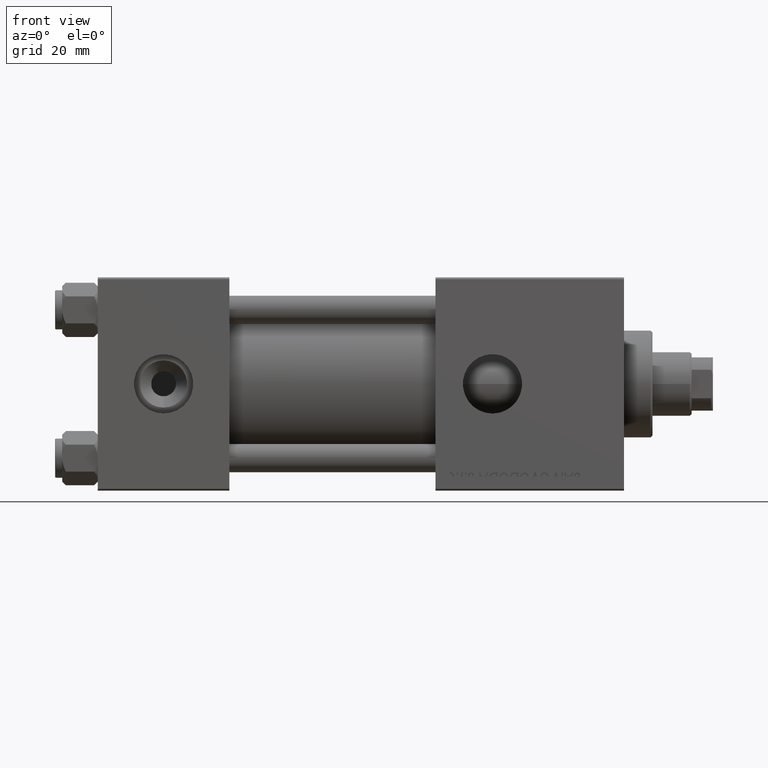
[diagram: clean part render]
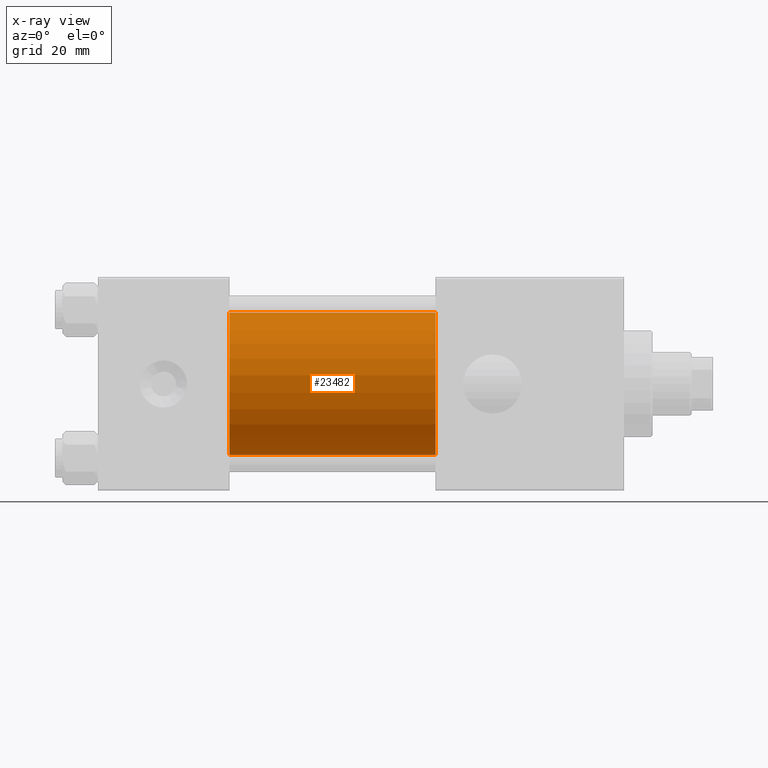
[diagram: x-ray — body ghosted, one internal face saturated and labeled with its STEP entity id]
A machine part, front view, then the same camera in x-ray: the body is ghosted and one INTERNAL B-rep face — a face not visible from any outside direction — is saturated and labeled: STEP entity #23482.
In plain terms, the highlighted cylindrical surface (partial cylindrical patch) has radius 20 mm, axis along (-1, -0, -0).
Its self-contained STEP definition (entity closure, byte-faithful):
#708 = DIRECTION ( 'NONE',  ( -1.000000000000000000, -0.000000000000000000, -0.000000000000000000 ) ) ;
#2819 = DIRECTION ( 'NONE',  ( 1.000000000000000000, 0.000000000000000000, 0.000000000000000000 ) ) ;
#3693 = AXIS2_PLACEMENT_3D ( 'NONE', #39027, #2819, #18948 ) ;
#3773 = LINE ( 'NONE', #11192, #16493 ) ;
#4326 = EDGE_CURVE ( 'NONE', #21638, #51113, #3773, .T. ) ;
#4683 = CARTESIAN_POINT ( 'NONE',  ( 95.00000000000000000, -2.602085213965210642E-15, 0.000000000000000000 ) ) ;
#5342 = CARTESIAN_POINT ( 'NONE',  ( 95.00000000000000000, -1.527916156705046464E-16, -20.00000000000000000 ) ) ;
#5831 = EDGE_CURVE ( 'NONE', #22082, #13496, #44984, .T. ) ;
#11192 = CARTESIAN_POINT ( 'NONE',  ( 95.00000000000000000, -2.602085213965210642E-15, 20.00000000000000000 ) ) ;
#12831 = CARTESIAN_POINT ( 'NONE',  ( 95.00000000000000000, -2.602085213965210642E-15, 20.00000000000000000 ) ) ;
#13496 = VERTEX_POINT ( 'NONE', #43789 ) ;
#13542 = DIRECTION ( 'NONE',  ( -1.000000000000000000, -0.000000000000000000, -0.000000000000000000 ) ) ;
#14708 = CIRCLE ( 'NONE', #3693, 20.00000000000000000 ) ;
#15498 = DIRECTION ( 'NONE',  ( 1.000000000000000000, 0.000000000000000000, 0.000000000000000000 ) ) ;
#15555 = AXIS2_PLACEMENT_3D ( 'NONE', #27147, #15498, #50940 ) ;
#16493 = VECTOR ( 'NONE', #27316, 1000.000000000000000 ) ;
#18948 = DIRECTION ( 'NONE',  ( 0.000000000000000000, 0.000000000000000000, -1.000000000000000000 ) ) ;
#19776 = CIRCLE ( 'NONE', #15555, 20.00000000000000000 ) ;
#21638 = VERTEX_POINT ( 'NONE', #12831 ) ;
#22082 = VERTEX_POINT ( 'NONE', #48700 ) ;
#23241 = ORIENTED_EDGE ( 'NONE', *, *, #27714, .T. ) ;
#23482 = ADVANCED_FACE ( 'NONE', ( #36139 ), #48823, .F. ) ;
#27147 = CARTESIAN_POINT ( 'NONE',  ( 37.00000000000000000, -2.602085213965210642E-15, 0.000000000000000000 ) ) ;
#27316 = DIRECTION ( 'NONE',  ( -1.000000000000000000, -0.000000000000000000, -0.000000000000000000 ) ) ;
#27714 = EDGE_CURVE ( 'NONE', #21638, #22082, #14708, .T. ) ;
#27963 = DIRECTION ( 'NONE',  ( 0.000000000000000000, 0.000000000000000000, 1.000000000000000000 ) ) ;
#28616 = EDGE_CURVE ( 'NONE', #51113, #13496, #19776, .T. ) ;
#28622 = ORIENTED_EDGE ( 'NONE', *, *, #4326, .F. ) ;
#33249 = ORIENTED_EDGE ( 'NONE', *, *, #28616, .F. ) ;
#35007 = EDGE_LOOP ( 'NONE', ( #23241, #41884, #33249, #28622 ) ) ;
#36139 = FACE_OUTER_BOUND ( 'NONE', #35007, .T. ) ;
#39027 = CARTESIAN_POINT ( 'NONE',  ( 95.00000000000000000, -2.602085213965210642E-15, 0.000000000000000000 ) ) ;
#39841 = AXIS2_PLACEMENT_3D ( 'NONE', #4683, #708, #27963 ) ;
#41373 = CARTESIAN_POINT ( 'NONE',  ( 37.00000000000000000, -2.602085213965210642E-15, 20.00000000000000000 ) ) ;
#41843 = VECTOR ( 'NONE', #13542, 1000.000000000000000 ) ;
#41884 = ORIENTED_EDGE ( 'NONE', *, *, #5831, .T. ) ;
#43789 = CARTESIAN_POINT ( 'NONE',  ( 37.00000000000000000, -1.527916156705046464E-16, -20.00000000000000000 ) ) ;
#44984 = LINE ( 'NONE', #5342, #41843 ) ;
#48700 = CARTESIAN_POINT ( 'NONE',  ( 95.00000000000000000, -1.527916156705046464E-16, -20.00000000000000000 ) ) ;
#48823 = CYLINDRICAL_SURFACE ( 'NONE', #39841, 20.00000000000000000 ) ;
#50940 = DIRECTION ( 'NONE',  ( 0.000000000000000000, 0.000000000000000000, -1.000000000000000000 ) ) ;
#51113 = VERTEX_POINT ( 'NONE', #41373 ) ;